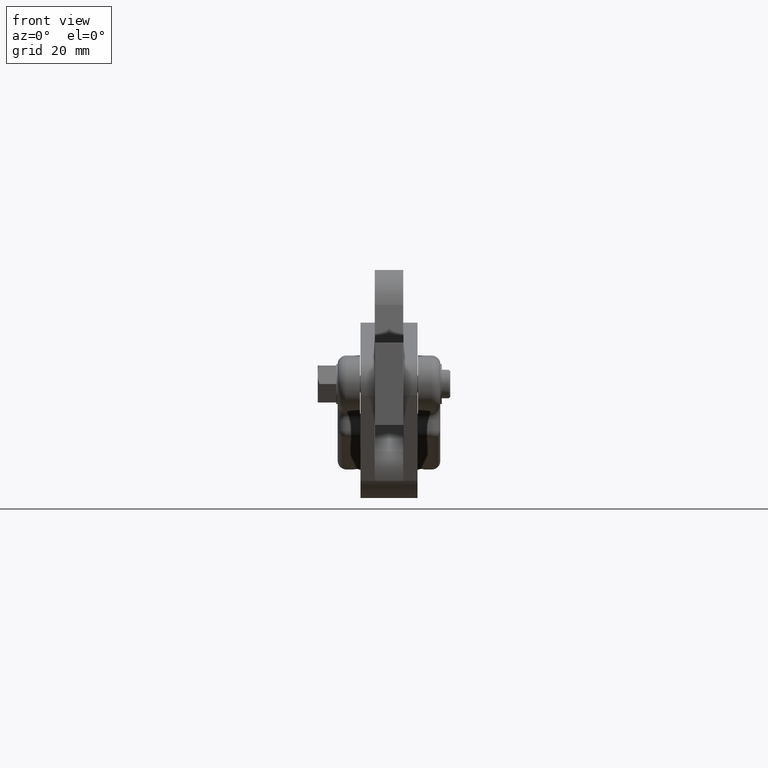
[diagram: clean part render]
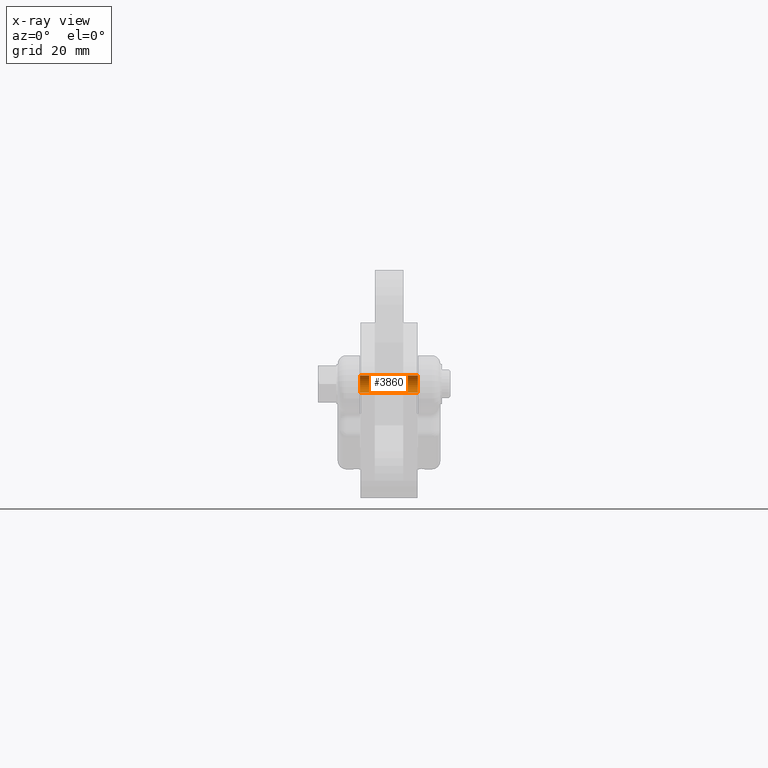
[diagram: x-ray — body ghosted, one internal face saturated and labeled with its STEP entity id]
A machine part, front view, then the same camera in x-ray: the body is ghosted and one INTERNAL B-rep face — a face not visible from any outside direction — is saturated and labeled: STEP entity #3860.
In plain terms, the highlighted cylindrical surface (edge-blend (fillet) strip) has radius 3 mm, axis along (-1, 0, 0).
Its self-contained STEP definition (entity closure, byte-faithful):
#96 = AXIS2_PLACEMENT_3D ( 'NONE', #4964, #4874, #3575 ) ;
#396 = CARTESIAN_POINT ( 'NONE',  ( 10.15000000000000000, 20.00000000000000700, 2.999999999999989300 ) ) ;
#888 = VERTEX_POINT ( 'NONE', #2254 ) ;
#970 = DIRECTION ( 'NONE',  ( 0.0000000000000000000, 1.000000000000000000, 0.0000000000000000000 ) ) ;
#985 = CARTESIAN_POINT ( 'NONE',  ( 21.46370849898476200, 20.00000000000000700, -3.000000000000011100 ) ) ;
#1374 = LINE ( 'NONE', #985, #5293 ) ;
#1654 = CIRCLE ( 'NONE', #2002, 3.000000000000000000 ) ;
#1658 = EDGE_LOOP ( 'NONE', ( #5375, #4737, #5326, #4928 ) ) ;
#1739 = DIRECTION ( 'NONE',  ( 1.000000000000000000, -2.289965634086132900E-017, 0.0000000000000000000 ) ) ;
#2002 = AXIS2_PLACEMENT_3D ( 'NONE', #6207, #4921, #6481 ) ;
#2254 = CARTESIAN_POINT ( 'NONE',  ( 10.15000000000000000, 20.00000000000000700, -3.000000000000011100 ) ) ;
#2272 = DIRECTION ( 'NONE',  ( -1.000000000000000000, 0.0000000000000000000, 0.0000000000000000000 ) ) ;
#2359 = AXIS2_PLACEMENT_3D ( 'NONE', #2671, #1739, #970 ) ;
#2671 = CARTESIAN_POINT ( 'NONE',  ( 10.15000000000000000, 20.00000000000000700, -1.084757283997817000E-014 ) ) ;
#2819 = CARTESIAN_POINT ( 'NONE',  ( -10.15000000000000000, 20.00000000000000700, -3.000000000000011100 ) ) ;
#3305 = VERTEX_POINT ( 'NONE', #396 ) ;
#3415 = LINE ( 'NONE', #5189, #4626 ) ;
#3497 = DIRECTION ( 'NONE',  ( -1.000000000000000000, 0.0000000000000000000, 0.0000000000000000000 ) ) ;
#3575 = DIRECTION ( 'NONE',  ( 0.0000000000000000000, 0.0000000000000000000, 1.000000000000000000 ) ) ;
#3812 = VERTEX_POINT ( 'NONE', #2819 ) ;
#3860 = ADVANCED_FACE ( 'NONE', ( #5490 ), #5166, .T. ) ;
#3909 = CARTESIAN_POINT ( 'NONE',  ( -10.15000000000000000, 20.00000000000000700, 2.999999999999989300 ) ) ;
#4626 = VECTOR ( 'NONE', #2272, 1000.000000000000000 ) ;
#4737 = ORIENTED_EDGE ( 'NONE', *, *, #6734, .T. ) ;
#4824 = CIRCLE ( 'NONE', #2359, 2.999999999999999100 ) ;
#4874 = DIRECTION ( 'NONE',  ( -1.000000000000000000, 0.0000000000000000000, 0.0000000000000000000 ) ) ;
#4921 = DIRECTION ( 'NONE',  ( 1.000000000000000000, 0.0000000000000000000, 0.0000000000000000000 ) ) ;
#4928 = ORIENTED_EDGE ( 'NONE', *, *, #6363, .F. ) ;
#4949 = EDGE_CURVE ( 'NONE', #888, #3305, #4824, .T. ) ;
#4961 = EDGE_CURVE ( 'NONE', #3812, #5820, #1654, .T. ) ;
#4964 = CARTESIAN_POINT ( 'NONE',  ( 21.46370849898476200, 20.00000000000000700, -1.084757283997817000E-014 ) ) ;
#5166 = CYLINDRICAL_SURFACE ( 'NONE', #96, 3.000000000000000000 ) ;
#5189 = CARTESIAN_POINT ( 'NONE',  ( 21.46370849898476200, 20.00000000000000700, 2.999999999999989300 ) ) ;
#5293 = VECTOR ( 'NONE', #3497, 1000.000000000000000 ) ;
#5326 = ORIENTED_EDGE ( 'NONE', *, *, #4961, .T. ) ;
#5375 = ORIENTED_EDGE ( 'NONE', *, *, #4949, .F. ) ;
#5490 = FACE_OUTER_BOUND ( 'NONE', #1658, .T. ) ;
#5820 = VERTEX_POINT ( 'NONE', #3909 ) ;
#6207 = CARTESIAN_POINT ( 'NONE',  ( -10.15000000000000000, 20.00000000000000700, -1.084757283997817000E-014 ) ) ;
#6363 = EDGE_CURVE ( 'NONE', #3305, #5820, #3415, .T. ) ;
#6481 = DIRECTION ( 'NONE',  ( 0.0000000000000000000, 0.0000000000000000000, -1.000000000000000000 ) ) ;
#6734 = EDGE_CURVE ( 'NONE', #888, #3812, #1374, .T. ) ;